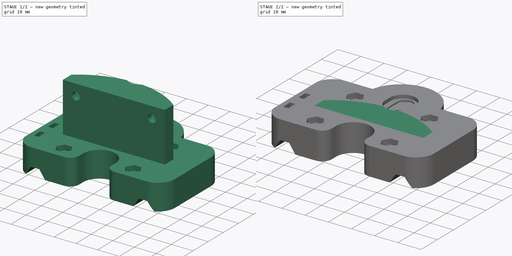
[diagram: build sequence overview — one tinted view per stage of 2, left to right]
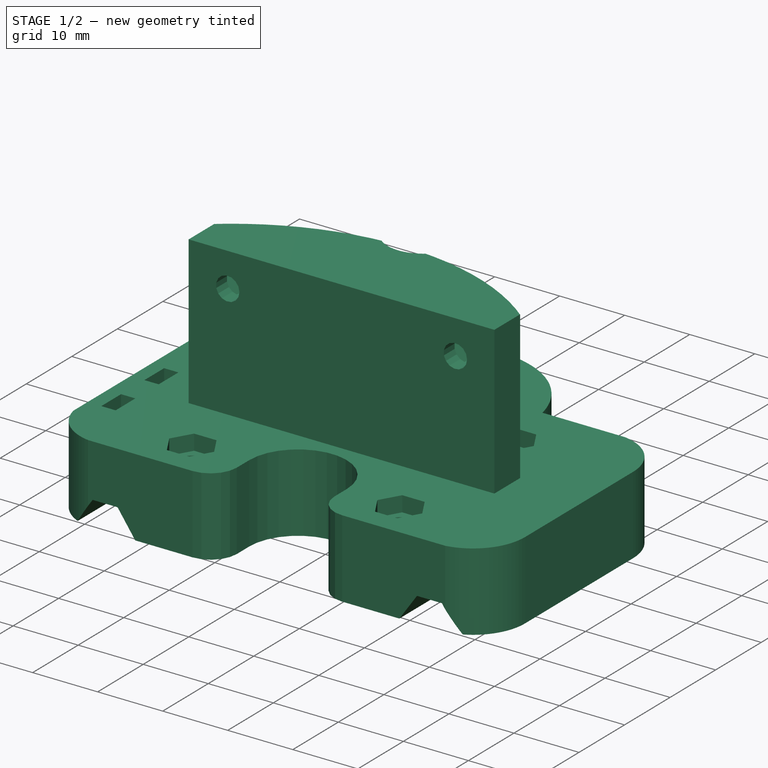
[diagram: stage 1 of 2 — iso view after this stage's code; geometry added in this stage tinted green]
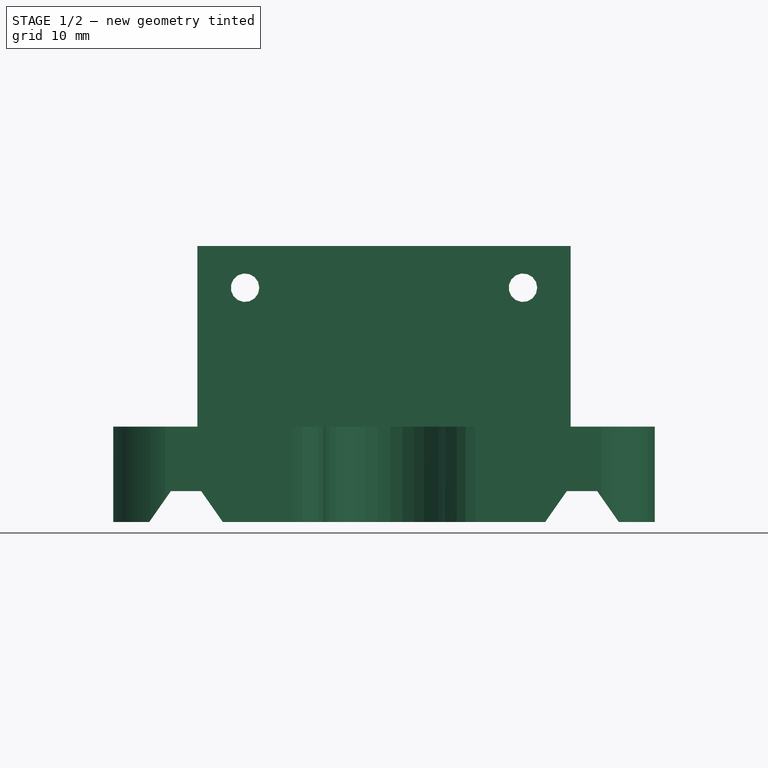
[diagram: stage 1 of 2 — front view after this stage's code; geometry added in this stage tinted green]
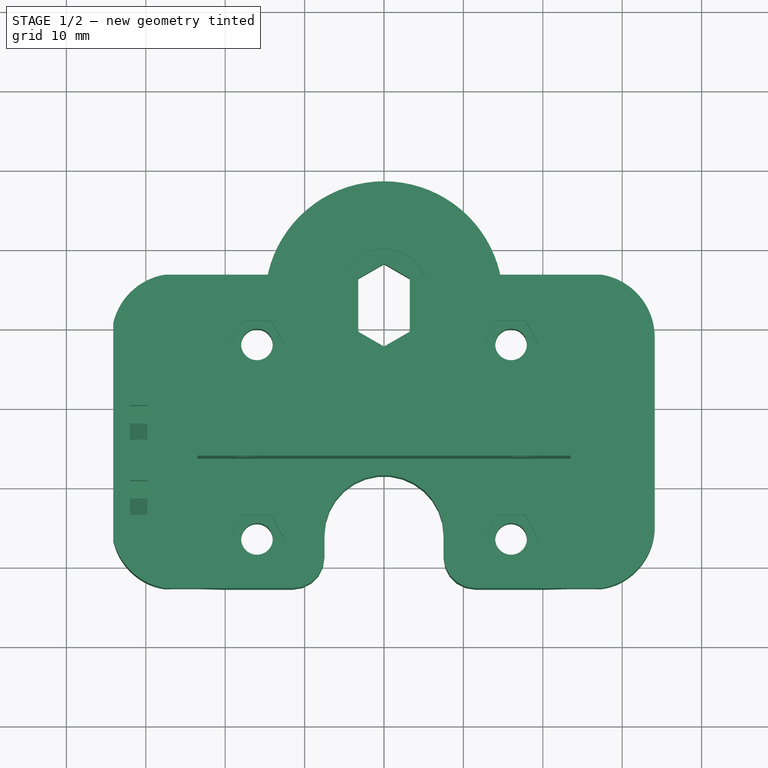
[diagram: stage 1 of 2 — top view after this stage's code; geometry added in this stage tinted green]
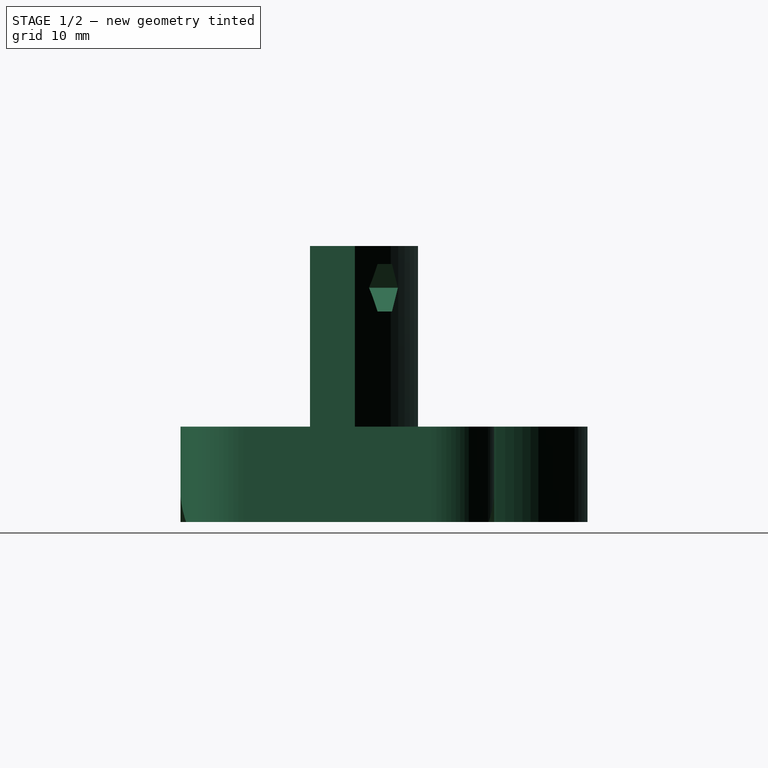
[diagram: stage 1 of 2 — right view after this stage's code; geometry added in this stage tinted green]
FCSTD DOCUMENT  (FreeCAD 0.14R2800 (Git))
Label: M5-xend-101
License: CC-BY 3.0
LicenseURL: http://creativecommons.org/licenses/by/3.0/
objects: Sketcher::SketchObject×3, PartDesign::Pocket×2, Part::Feature×1, PartDesign::Pad×1
note: 10 computed .brp shape members not serialized (recipe doc carries the construction recipe); baked Part::Feature solids carry a one-line shape summary decoded from their .brp

FEATURE [Part::Feature] Solid  label="ao101-xend"
  shape: bbox 68.2 x 51.25 x 34.75 mm, 631 faces (baked)
FEATURE [Sketcher::SketchObject] Sketch
  ExternalGeometry = -> [Solid]
  Placement = pos=(0,0,-4.5) rot=(1,0,0;3.14159rad)
  Support = -> Solid [Face9]
  sketch-geometry (16):
    g0: LineSegment [constr] StartX=-9.95929 StartY=-5.75 StartZ=0 EndX=9.95929 EndY=-20.25 EndZ=0
    g1: LineSegment [constr] StartX=-9.95929 StartY=-20.25 StartZ=0 EndX=9.95929 EndY=-5.75 EndZ=0
    g2: GeomPoint [constr] X=0 Y=-13 Z=0
    g3: LineSegment [constr] StartX=7.1761e-08 StartY=-26 StartZ=0 EndX=0 EndY=0 EndZ=0
    g4: LineSegment StartX=-9.95929 StartY=-5.75 StartZ=0 EndX=-9.95929 EndY=-20.25 EndZ=0
    g5: LineSegment StartX=-9.95929 StartY=-20.25 StartZ=0 EndX=7.1761e-08 EndY=-26 EndZ=0
    g6: LineSegment StartX=7.1761e-08 StartY=-26 StartZ=0 EndX=9.95929 EndY=-20.25 EndZ=0
    g7: LineSegment StartX=9.95929 StartY=-20.25 StartZ=0 EndX=9.95929 EndY=-5.75 EndZ=0
    g8: LineSegment StartX=9.95929 StartY=-5.75 StartZ=0 EndX=-7.1761e-08 EndY=-1.24293e-07 EndZ=0
    g9: LineSegment StartX=-7.1761e-08 StartY=-1.24293e-07 StartZ=0 EndX=-9.95929 EndY=-5.75 EndZ=0
    g10: LineSegment StartX=-4 StartY=-15.9119 StartZ=0 EndX=-4 EndY=-10.0881 EndZ=0
    g11: LineSegment StartX=-4 StartY=-10.0881 StartZ=0 EndX=2.1469e-08 EndY=-7.77874 EndZ=0
    g12: LineSegment StartX=2.1469e-08 StartY=-7.77874 StartZ=0 EndX=4 EndY=-10.0881 EndZ=0
    g13: LineSegment StartX=4 StartY=-10.0881 StartZ=0 EndX=4 EndY=-15.9119 EndZ=0
    g14: LineSegment StartX=4 StartY=-15.9119 StartZ=0 EndX=5.0291e-08 EndY=-18.2213 EndZ=0
    g15: LineSegment StartX=5.0291e-08 StartY=-18.2213 StartZ=0 EndX=-4 EndY=-15.9119 EndZ=0
  constraints (38):
    c: Coincident(g0,g-5)
    c: Coincident(g0,g-6)
    c: Coincident(g1,g-8)
    c: Coincident(g1,g-4)
    c: PointOnObject(g2,g1)
    c: PointOnObject(g2,g0)
    c: Coincident(g3,g-7)
    c: Coincident(g3,g-1)
    c: Coincident(g0,g4)
    c: Coincident(g4,g1)
    c: Coincident(g4,g5)
    c: Coincident(g5,g3)
    c: Coincident(g5,g6)
    c: Coincident(g6,g0)
    c: Coincident(g6,g7)
    c: Coincident(g7,g1)
    c: Coincident(g7,g8)
    c: Coincident(g8,g-3)
    c: Coincident(g8,g9)
    c: Coincident(g9,g0)
    c: PointOnObject(g10,g1)
    c: PointOnObject(g10,g0)
    c: Coincident(g10,g11)
    c: PointOnObject(g11,g3)
    c: Coincident(g11,g12)
    c: PointOnObject(g12,g1)
    c: Coincident(g12,g13)
    c: PointOnObject(g13,g0)
    c: Coincident(g13,g14)
    c: PointOnObject(g14,g3)
    c: Coincident(g14,g15)
    c: Coincident(g15,g10)
    c: Parallel(g4,g10)
    c: Parallel(g10,g13)
    c: Equal(g10,g13)
    c: Parallel(g9,g11)
    c: Parallel(g11,g14)
    c: Distance(g10,g13) = 8
FEATURE [PartDesign::Pad] Pad
  Length = 7
  Length2 = 100
  Reversed = true
  Sketch = -> Sketch
  Type = 0
  UpToFace = -> Solid [Face629]
FEATURE [Sketcher::SketchObject] Sketch001
  ExternalGeometry = -> [Pad]
  Placement = pos=(0,0,7.5) rot=(0,0,1;0rad)
  Support = -> Pad [Face33]
  sketch-geometry (9):
    g0: LineSegment [constr] StartX=4 StartY=15.9119 StartZ=0 EndX=-4 EndY=15.9119 EndZ=0
    g1: LineSegment [constr] StartX=4 StartY=10.0881 StartZ=0 EndX=-4 EndY=10.0881 EndZ=0
    g2: LineSegment [constr] StartX=5.0291e-08 StartY=18.2213 StartZ=0 EndX=2.1469e-08 EndY=7.77874 EndZ=0
    g3: GeomPoint [constr] X=4.3917e-08 Y=15.9119 Z=0
    g4: GeomPoint [constr] X=2.7843e-08 Y=10.0881 Z=0
    g5: ArcOfCircle CenterX=4.3917e-08 CenterY=15.9119 CenterZ=0 NormalX=0 NormalY=0 NormalZ=1 Radius=3.25 StartAngle=0 EndAngle=3.14159
    g6: ArcOfCircle CenterX=2.7843e-08 CenterY=10.0881 CenterZ=0 NormalX=0 NormalY=0 NormalZ=1 Radius=3.25 StartAngle=3.14159 EndAngle=6.28319
    g7: LineSegment StartX=3.25 StartY=15.9119 StartZ=0 EndX=3.25 EndY=10.0881 EndZ=0
    g8: LineSegment StartX=-3.25 StartY=15.9119 StartZ=0 EndX=-3.25 EndY=10.0881 EndZ=0
  constraints (25):
    c: Coincident(g0,g-5)
    c: Coincident(g0,g-6)
    c: Coincident(g1,g-8)
    c: Coincident(g1,g-7)
    c: Coincident(g2,g-6)
    c: Coincident(g2,g-8)
    c: PointOnObject(g3,g0)
    c: PointOnObject(g3,g2)
    c: PointOnObject(g4,g1)
    c: PointOnObject(g4,g2)
    c: Coincident(g5,g3)
    c: Coincident(g6,g4)
    c: Equal(g5,g6)
    c: PointOnObject(g7,g5)
    c: PointOnObject(g7,g6)
    c: PointOnObject(g7,g0)
    c: PointOnObject(g7,g1)
    c: PointOnObject(g8,g0)
    c: PointOnObject(g8,g5)
    c: PointOnObject(g5,g0)
    c: PointOnObject(g5,g0)
    c: PointOnObject(g6,g1)
    c: Coincident(g6,g8)
    c: Distance(g5,g5) = 6.5
    c: PointOnObject(g6,g1)
FEATURE [PartDesign::Pocket] Pocket  label="101"
  Length = 0
  Sketch = -> Sketch001
  Type = 3
  UpToFace = -> Pad [Face639]
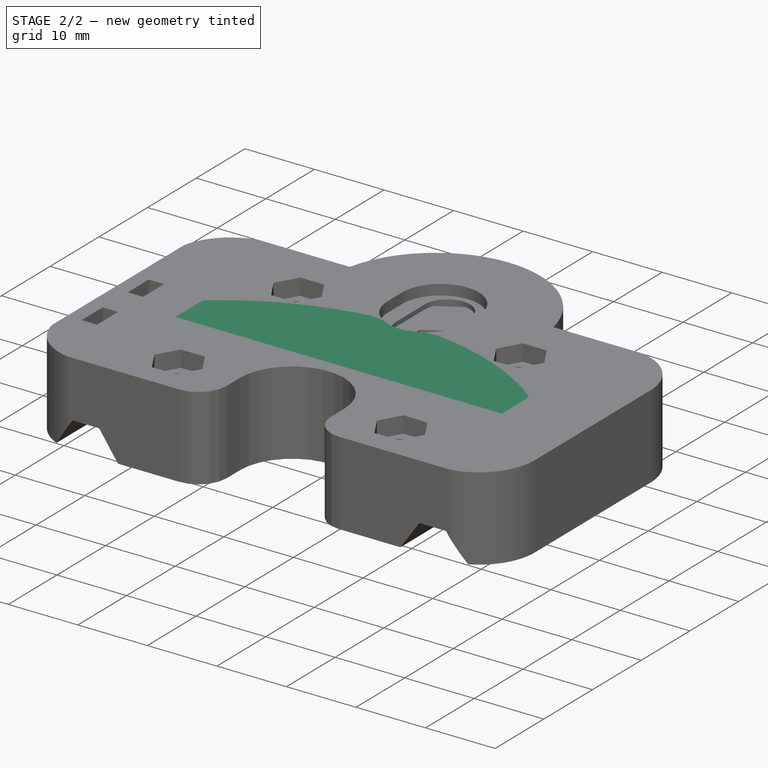
[diagram: stage 2 of 2 — iso view after this stage's code; geometry added in this stage tinted green]
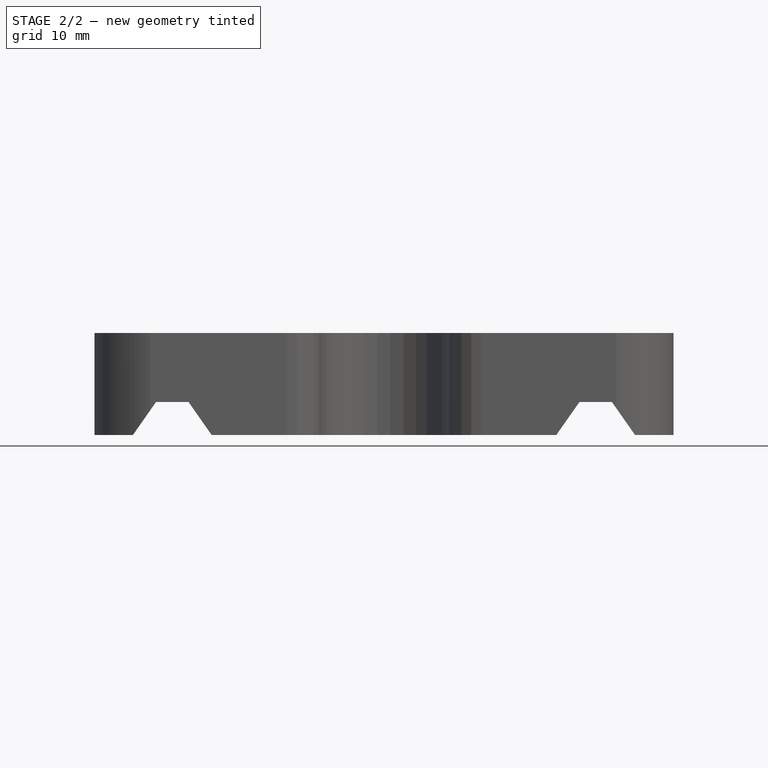
[diagram: stage 2 of 2 — front view after this stage's code; geometry added in this stage tinted green]
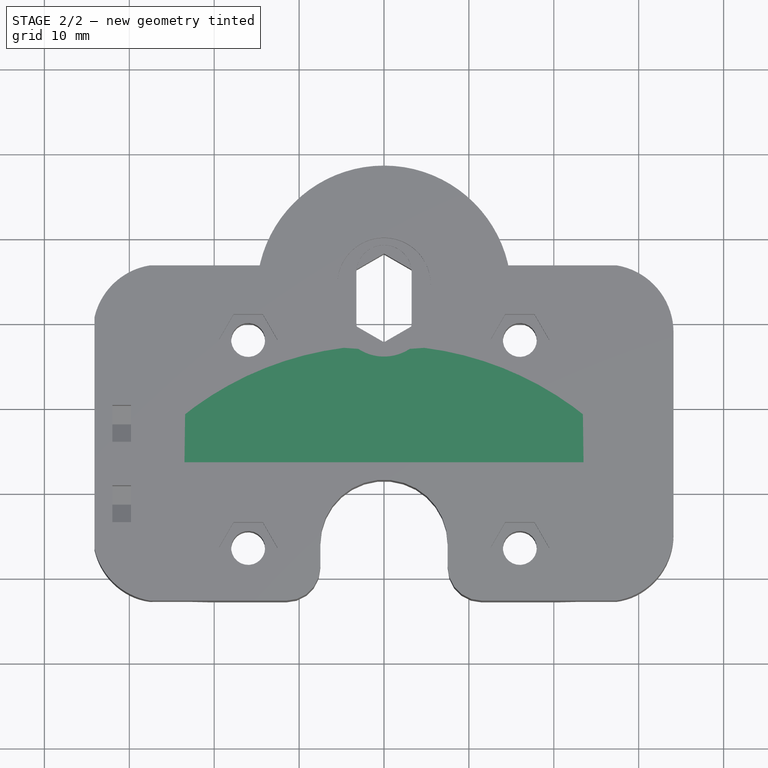
[diagram: stage 2 of 2 — top view after this stage's code; geometry added in this stage tinted green]
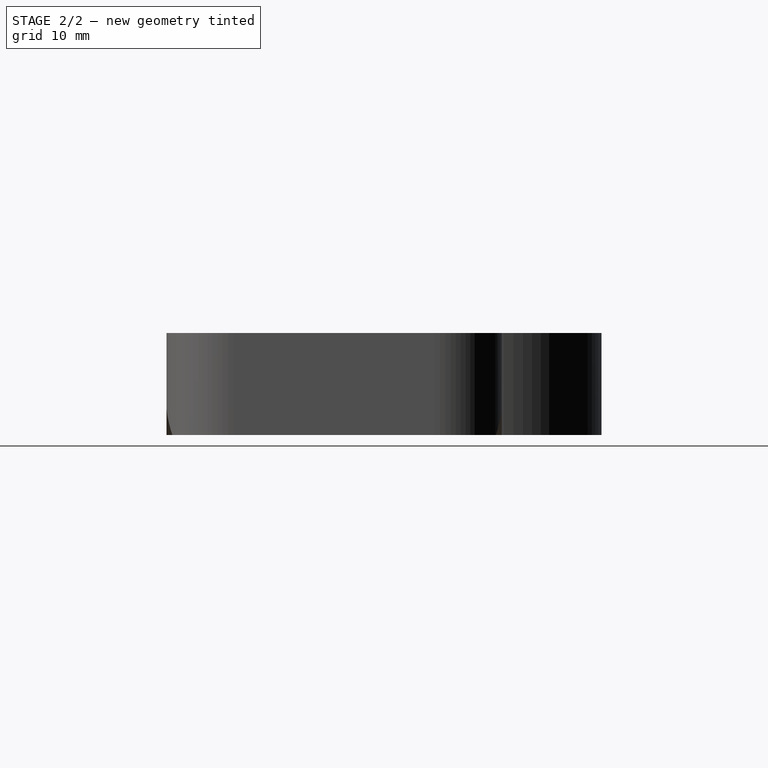
[diagram: stage 2 of 2 — right view after this stage's code; geometry added in this stage tinted green]
FEATURE [Sketcher::SketchObject] Sketch002
  ExternalGeometry = -> [Pocket]
  Placement = pos=(0,0,30.25) rot=(0,0,1;0rad)
  Support = -> Pocket [Face445]
  sketch-geometry (4):
    g0: LineSegment StartX=-23.5 StartY=-6.45 StartZ=0 EndX=23.5 EndY=-6.45 EndZ=0
    g1: LineSegment StartX=23.5 StartY=-6.45 StartZ=0 EndX=23.5 EndY=16.6154 EndZ=0
    g2: LineSegment StartX=23.5 StartY=16.6154 StartZ=0 EndX=-23.5 EndY=16.6154 EndZ=0
    g3: LineSegment StartX=-23.5 StartY=16.6154 StartZ=0 EndX=-23.5 EndY=-6.45 EndZ=0
  constraints (10):
    c: Coincident(g0,g1)
    c: Coincident(g1,g2)
    c: Coincident(g2,g3)
    c: Coincident(g3,g0)
    c: Horizontal(g0)
    c: Horizontal(g2)
    c: Vertical(g1)
    c: Vertical(g3)
    c: Coincident(g0,g-3)
    c: Coincident(g0,g-3)
FEATURE [PartDesign::Pocket] Pocket001
  Length = 0
  Sketch = -> Sketch002
  Type = 3
  UpToFace = -> Pocket [Face33]
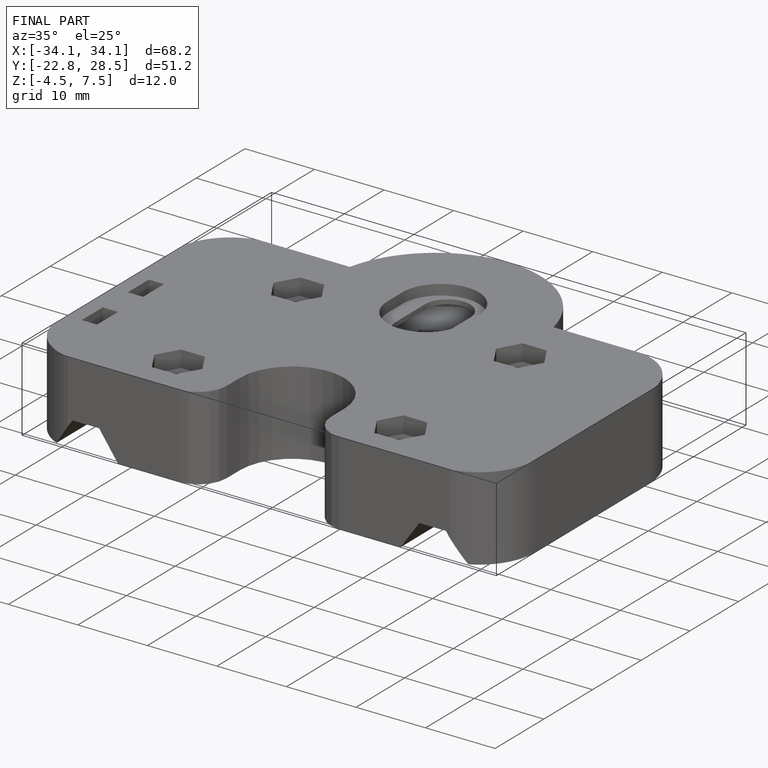
[diagram: finished part — iso view with bounding-box wireframe]
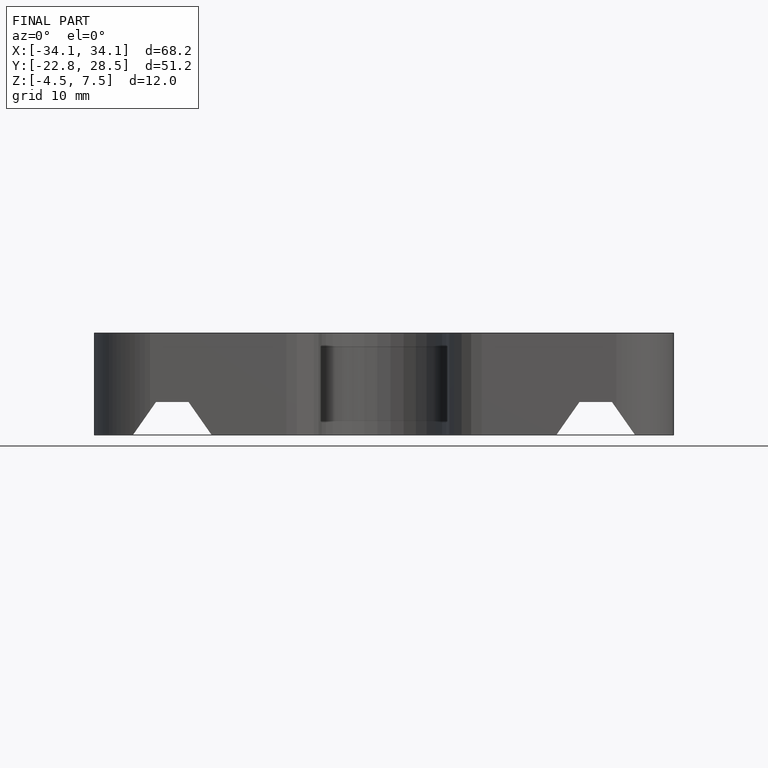
[diagram: finished part — front view with bounding-box wireframe]
